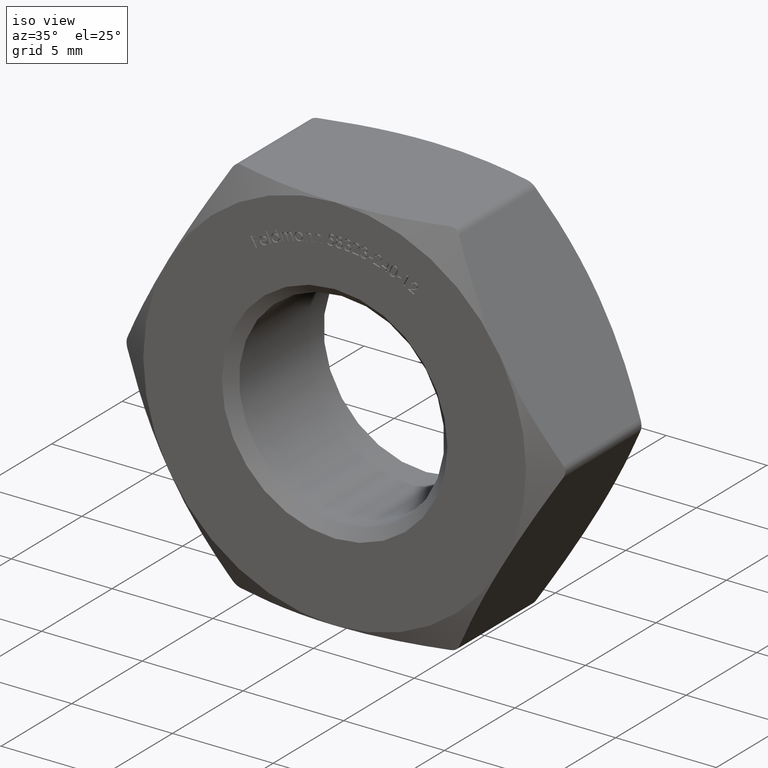
[diagram: clean part render]
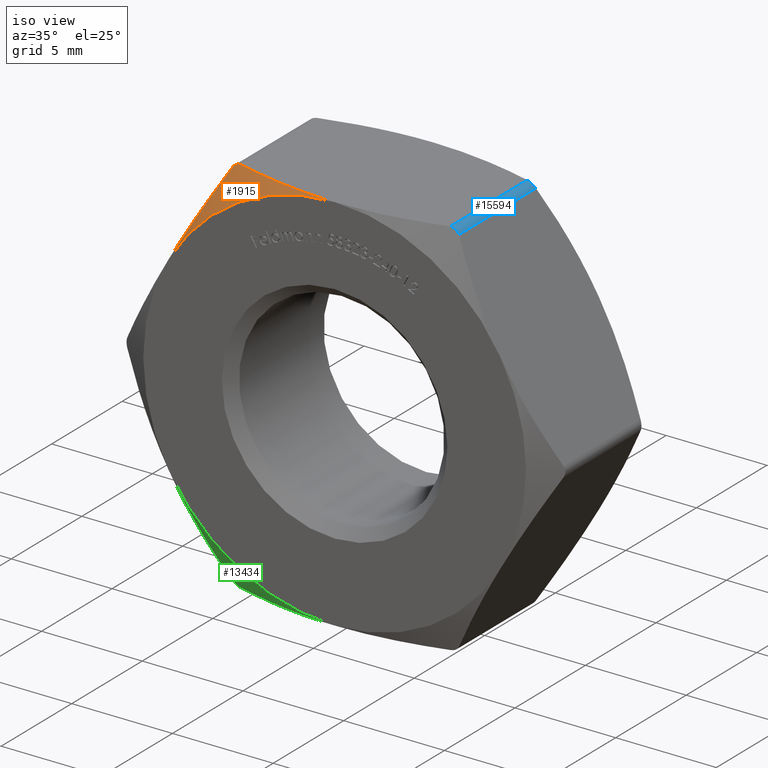
[diagram: same view with three faces highlighted in distinct colors, each labeled with its STEP entity id]
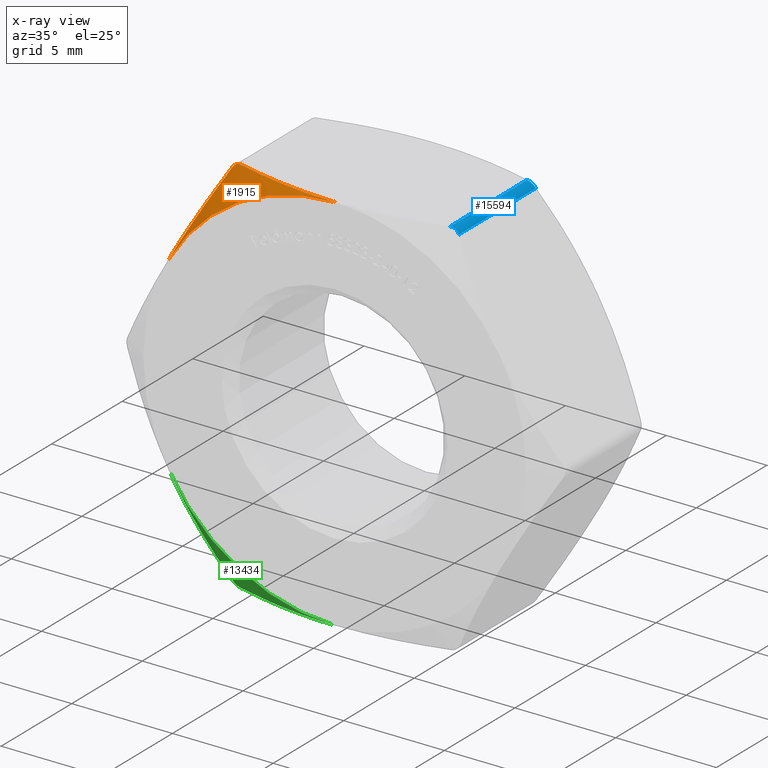
[diagram: x-ray of the same camera — body ghosted, the three highlighted faces saturated]
A machine part, iso view with three faces highlighted in distinct colors.
The next image is the same camera in x-ray (body ghosted, the three faces saturated) — at least one of them is partly hidden behind the body in this view.
Their STEP definitions:

[orange] entity #1915 — the highlighted conical surface has half-angle 60 deg.
#121 = CARTESIAN_POINT ( 'NONE',  ( -6.053412761787224200, -2.968240341392042400, 8.515181537398682100 ) ) ;
#693 = CARTESIAN_POINT ( 'NONE',  ( -5.586216033881830100, -2.709362655883565300, 9.324390007260763700 ) ) ;
#959 = EDGE_CURVE ( 'NONE', #9772, #6608, #6633, .T. ) ;
#1188 = CONICAL_SURFACE ( 'NONE', #2061, 9.500000000000001800, 1.047197551196604100 ) ;
#1213 = CARTESIAN_POINT ( 'NONE',  ( -8.227241335952168600, -3.500000000000000000, 4.750000000000000900 ) ) ;
#1263 = CARTESIAN_POINT ( 'NONE',  ( -5.196152422707281300, -2.733161112797592600, 9.500000000000001800 ) ) ;
#1301 = DIRECTION ( 'NONE',  ( 0.0000000000000000000, 0.0000000000000000000, 1.000000000000000000 ) ) ;
#1393 = CARTESIAN_POINT ( 'NONE',  ( -4.348666152671948600, -2.967960792442867900, 9.500000000000001800 ) ) ;
#1448 = ORIENTED_EDGE ( 'NONE', *, *, #14249, .F. ) ;
#1915 = ADVANCED_FACE ( 'NONE', ( #8037 ), #1188, .T. ) ;
#2061 = AXIS2_PLACEMENT_3D ( 'NONE', #7281, #15125, #2103 ) ;
#2103 = DIRECTION ( 'NONE',  ( 1.000000000000000000, 0.0000000000000000000, 0.0000000000000000000 ) ) ;
#2733 = VERTEX_POINT ( 'NONE', #1213 ) ;
#3143 = CARTESIAN_POINT ( 'NONE',  ( -5.629165124598849000, -2.733161112797774200, 9.250000000000000000 ) ) ;
#3198 = CARTESIAN_POINT ( 'NONE',  ( -5.196152422707281300, -2.733161112797592600, 9.500000000000001800 ) ) ;
#3751 = CARTESIAN_POINT ( 'NONE',  ( -3.482435840627232900, -3.163065989375615700, 9.500000000000001800 ) ) ;
#4057 = CARTESIAN_POINT ( 'NONE',  ( -5.629165124598849000, -2.733161112797774200, 9.250000000000000000 ) ) ;
#4195 = EDGE_LOOP ( 'NONE', ( #7254, #15839, #13983, #1448 ) ) ;
#4452 = CARTESIAN_POINT ( 'NONE',  ( -5.369432392636323200, -2.696196110277392600, 9.477215452927211500 ) ) ;
#4567 = CARTESIAN_POINT ( 'NONE',  ( -5.282019346758962000, -2.709371315874078000, 9.500000000000000000 ) ) ;
#5151 = CARTESIAN_POINT ( 'NONE',  ( -7.347778050468204600, -3.412405536657729100, 6.273275093849667500 ) ) ;
#5197 = AXIS2_PLACEMENT_3D ( 'NONE', #8802, #12658, #1301 ) ;
#5256 = CARTESIAN_POINT ( 'NONE',  ( -6.481161992788940100, -3.161040693212942000, 7.774298136405198200 ) ) ;
#6315 = B_SPLINE_CURVE_WITH_KNOTS ( 'NONE', 3,
 ( #15235, #10209, #11503, #5151, #14156, #5256, #121, #4057 ),
 .UNSPECIFIED., .F., .F.,
 ( 4, 2, 2, 4 ),
 ( 0.005549985383765654100, 0.006857997360578059000, 0.008166009337390464600, 0.01078203329101527400 ),
 .UNSPECIFIED. ) ;
#6417 = EDGE_CURVE ( 'NONE', #2733, #6608, #6315, .T. ) ;
#6608 = VERTEX_POINT ( 'NONE', #16556 ) ;
#6633 = B_SPLINE_CURVE_WITH_KNOTS ( 'NONE', 3,
 ( #3198, #4567, #4452, #12269, #693, #3143 ),
 .UNSPECIFIED., .F., .F.,
 ( 4, 2, 4 ),
 ( 6.327872022629089200E-016, 0.0002637781458277957400, 0.0005275562916549586400 ),
 .UNSPECIFIED. ) ;
#7254 = ORIENTED_EDGE ( 'NONE', *, *, #11819, .F. ) ;
#7281 = CARTESIAN_POINT ( 'NONE',  ( 3.931690912932538000E-017, -3.500000000000000000, 0.0000000000000000000 ) ) ;
#7700 = CIRCLE ( 'NONE', #5197, 9.500000000000001800 ) ;
#7862 = CARTESIAN_POINT ( 'NONE',  ( -5.196152422707281300, -2.733161112797592600, 9.500000000000001800 ) ) ;
#8037 = FACE_OUTER_BOUND ( 'NONE', #4195, .T. ) ;
#8802 = CARTESIAN_POINT ( 'NONE',  ( 3.931690912932538000E-017, -3.500000000000000000, 1.848398285660946700E-016 ) ) ;
#9772 = VERTEX_POINT ( 'NONE', #1263 ) ;
#10209 = CARTESIAN_POINT ( 'NONE',  ( -8.007001594286082400, -3.500000000000008400, 5.131466422411502700 ) ) ;
#11503 = CARTESIAN_POINT ( 'NONE',  ( -7.785726958241923500, -3.482053147081709100, 5.514725334466293200 ) ) ;
#11529 = CARTESIAN_POINT ( 'NONE',  ( -0.8769579191401497600, -3.500000000000000000, 9.500000000000001800 ) ) ;
#11819 = EDGE_CURVE ( 'NONE', #9772, #15396, #13203, .T. ) ;
#12269 = CARTESIAN_POINT ( 'NONE',  ( -5.522094562399192200, -2.696108957237636000, 9.389258600500994600 ) ) ;
#12658 = DIRECTION ( 'NONE',  ( -0.0000000000000000000, -1.000000000000000000, -0.0000000000000000000 ) ) ;
#13203 = B_SPLINE_CURVE_WITH_KNOTS ( 'NONE', 3,
 ( #7862, #1393, #3751, #16726, #11529, #14125 ),
 .UNSPECIFIED., .F., .F.,
 ( 4, 2, 4 ),
 ( 0.01008431317107068100, 0.01270932973017897500, 0.01533434628928726800 ),
 .UNSPECIFIED. ) ;
#13858 = CARTESIAN_POINT ( 'NONE',  ( 3.931690912932538000E-017, -3.500000000000000000, 9.500000000000001800 ) ) ;
#13983 = ORIENTED_EDGE ( 'NONE', *, *, #6417, .F. ) ;
#14125 = CARTESIAN_POINT ( 'NONE',  ( 3.931690912932538000E-017, -3.500000000000000000, 9.500000000000001800 ) ) ;
#14156 = CARTESIAN_POINT ( 'NONE',  ( -7.130196065325849400, -3.360768812073043200, 6.650138146927925900 ) ) ;
#14249 = EDGE_CURVE ( 'NONE', #15396, #2733, #7700, .T. ) ;
#15125 = DIRECTION ( 'NONE',  ( -1.123340260837868000E-017, 1.000000000000000000, -0.0000000000000000000 ) ) ;
#15235 = CARTESIAN_POINT ( 'NONE',  ( -8.227241335952168600, -3.500000000000000000, 4.750000000000000900 ) ) ;
#15396 = VERTEX_POINT ( 'NONE', #13858 ) ;
#15839 = ORIENTED_EDGE ( 'NONE', *, *, #959, .T. ) ;
#16556 = CARTESIAN_POINT ( 'NONE',  ( -5.629165124598849000, -2.733161112797774200, 9.250000000000000000 ) ) ;
#16726 = CARTESIAN_POINT ( 'NONE',  ( -1.748548221912492400, -3.428786257910811500, 9.500000000000000000 ) ) ;

[blue] entity #15594 — the highlighted cylindrical surface (edge-blend (fillet) strip) has radius 0.5 mm, axis along (0, -1, 0).
#66 = LINE ( 'NONE', #2085, #14171 ) ;
#133 = CARTESIAN_POINT ( 'NONE',  ( 5.586231662572711100, -2.709371315873996300, 9.324362937574106200 ) ) ;
#380 = CARTESIAN_POINT ( 'NONE',  ( 5.522094562399021600, 2.696108957237604000, 9.389258600501161600 ) ) ;
#1439 = CYLINDRICAL_SURFACE ( 'NONE', #12619, 0.5000000000000004400 ) ;
#1485 = CARTESIAN_POINT ( 'NONE',  ( 5.522793143055056800, -2.696196110277375300, 9.388672582389874700 ) ) ;
#2085 = CARTESIAN_POINT ( 'NONE',  ( 5.196152422706629400, 3.500000000000000000, 9.500000000000001800 ) ) ;
#2286 = DIRECTION ( 'NONE',  ( 0.0000000000000000000, 0.0000000000000000000, -1.000000000000000000 ) ) ;
#2467 = B_SPLINE_CURVE_WITH_KNOTS ( 'NONE', 3,
 ( #9039, #133, #1485, #3960, #10501, #2752 ),
 .UNSPECIFIED., .F., .F.,
 ( 4, 2, 4 ),
 ( 9.650992615314286700E-016, 0.0002637781458279600000, 0.0005275562916549548400 ),
 .UNSPECIFIED. ) ;
#2752 = CARTESIAN_POINT ( 'NONE',  ( 5.196152422706628500, -2.733161112797773300, 9.500000000000001800 ) ) ;
#3178 = B_SPLINE_CURVE_WITH_KNOTS ( 'NONE', 3,
 ( #10807, #5675, #14641, #380, #14693, #15935 ),
 .UNSPECIFIED., .F., .F.,
 ( 4, 2, 4 ),
 ( 8.673617379884035500E-019, 0.0002637781458274811100, 0.0005275562916549613500 ),
 .UNSPECIFIED. ) ;
#3343 = ORIENTED_EDGE ( 'NONE', *, *, #11561, .F. ) ;
#3524 = CARTESIAN_POINT ( 'NONE',  ( 5.196152422706629400, 3.500000000000000000, 9.000000000000001800 ) ) ;
#3624 = VERTEX_POINT ( 'NONE', #16679 ) ;
#3960 = CARTESIAN_POINT ( 'NONE',  ( 5.370289189535662400, -2.696108957237654200, 9.476903473388148300 ) ) ;
#4768 = VERTEX_POINT ( 'NONE', #5012 ) ;
#5012 = CARTESIAN_POINT ( 'NONE',  ( 5.196152422706628500, -2.733161112797773300, 9.500000000000001800 ) ) ;
#5158 = CARTESIAN_POINT ( 'NONE',  ( 5.629165124598849000, 3.500000000000000000, 9.250000000000001800 ) ) ;
#5594 = EDGE_CURVE ( 'NONE', #4768, #16741, #66, .T. ) ;
#5675 = CARTESIAN_POINT ( 'NONE',  ( 5.282019346759056200, 2.709371315874232100, 9.500000000000000000 ) ) ;
#6583 = ORIENTED_EDGE ( 'NONE', *, *, #11458, .F. ) ;
#7792 = DIRECTION ( 'NONE',  ( 0.0000000000000000000, -1.000000000000000000, 0.0000000000000000000 ) ) ;
#8778 = EDGE_LOOP ( 'NONE', ( #9463, #13874, #3343, #6583 ) ) ;
#9039 = CARTESIAN_POINT ( 'NONE',  ( 5.629165124598350700, -2.733161112797497100, 9.250000000000863300 ) ) ;
#9288 = CARTESIAN_POINT ( 'NONE',  ( 5.196152422706628500, 2.733161112797773300, 9.500000000000001800 ) ) ;
#9463 = ORIENTED_EDGE ( 'NONE', *, *, #11757, .F. ) ;
#10501 = CARTESIAN_POINT ( 'NONE',  ( 5.282050604140605900, -2.709362655883581300, 9.500000000000003600 ) ) ;
#10807 = CARTESIAN_POINT ( 'NONE',  ( 5.196152422706628500, 2.733161112797773300, 9.500000000000001800 ) ) ;
#11245 = DIRECTION ( 'NONE',  ( 0.0000000000000000000, -1.000000000000000000, 0.0000000000000000000 ) ) ;
#11458 = EDGE_CURVE ( 'NONE', #3624, #14062, #16010, .T. ) ;
#11561 = EDGE_CURVE ( 'NONE', #14062, #4768, #2467, .T. ) ;
#11757 = EDGE_CURVE ( 'NONE', #16741, #3624, #3178, .T. ) ;
#11822 = CARTESIAN_POINT ( 'NONE',  ( 5.629165124598350700, -2.733161112797497100, 9.250000000000863300 ) ) ;
#12619 = AXIS2_PLACEMENT_3D ( 'NONE', #3524, #11245, #2286 ) ;
#13874 = ORIENTED_EDGE ( 'NONE', *, *, #5594, .F. ) ;
#14062 = VERTEX_POINT ( 'NONE', #11822 ) ;
#14171 = VECTOR ( 'NONE', #14939, 1000.000000000000000 ) ;
#14641 = CARTESIAN_POINT ( 'NONE',  ( 5.369432392635906700, 2.696196110277425500, 9.477215452927385500 ) ) ;
#14693 = CARTESIAN_POINT ( 'NONE',  ( 5.586216033881776800, 2.709362655883534600, 9.324390007260857900 ) ) ;
#14939 = DIRECTION ( 'NONE',  ( -0.0000000000000000000, 1.000000000000000000, -0.0000000000000000000 ) ) ;
#15148 = FACE_OUTER_BOUND ( 'NONE', #8778, .T. ) ;
#15221 = VECTOR ( 'NONE', #7792, 1000.000000000000000 ) ;
#15594 = ADVANCED_FACE ( 'NONE', ( #15148 ), #1439, .T. ) ;
#15935 = CARTESIAN_POINT ( 'NONE',  ( 5.629165124598849000, 2.733161112797772400, 9.250000000000001800 ) ) ;
#16010 = LINE ( 'NONE', #5158, #15221 ) ;
#16679 = CARTESIAN_POINT ( 'NONE',  ( 5.629165124598849000, 2.733161112797772400, 9.250000000000001800 ) ) ;
#16741 = VERTEX_POINT ( 'NONE', #9288 ) ;

[green] entity #13434 — the highlighted conical surface has half-angle 60 deg.
#111 = CARTESIAN_POINT ( 'NONE',  ( -8.227241335952168600, -3.500000000000000000, -4.750000000000001800 ) ) ;
#702 = EDGE_CURVE ( 'NONE', #10328, #5514, #4880, .T. ) ;
#1172 = CARTESIAN_POINT ( 'NONE',  ( -5.522793143055217500, -2.696196110277409900, -9.388672582389709500 ) ) ;
#2681 = CARTESIAN_POINT ( 'NONE',  ( -7.348052271291359200, -3.427662757294317700, -6.272800129451474600 ) ) ;
#2715 = CARTESIAN_POINT ( 'NONE',  ( -1.462997689607834900E-015, -3.500000000000000000, -9.500000000000001800 ) ) ;
#2931 = ORIENTED_EDGE ( 'NONE', *, *, #14754, .F. ) ;
#3020 = EDGE_CURVE ( 'NONE', #10773, #5514, #3417, .T. ) ;
#3417 = B_SPLINE_CURVE_WITH_KNOTS ( 'NONE', 3,
 ( #16554, #15325, #1172, #12878, #5058, #8950 ),
 .UNSPECIFIED., .F., .F.,
 ( 4, 2, 4 ),
 ( 9.644829498149094700E-016, 0.0002637781458276255200, 0.0005275562916542865400 ),
 .UNSPECIFIED. ) ;
#3570 = DIRECTION ( 'NONE',  ( -0.0000000000000000000, -1.000000000000000000, -0.0000000000000000000 ) ) ;
#4196 = DIRECTION ( 'NONE',  ( -1.123340260837868000E-017, 1.000000000000000000, -0.0000000000000000000 ) ) ;
#4877 = DIRECTION ( 'NONE',  ( 1.776356839400250500E-015, 0.0000000000000000000, 1.000000000000000000 ) ) ;
#4880 = B_SPLINE_CURVE_WITH_KNOTS ( 'NONE', 3,
 ( #2715, #11728, #13028, #12053, #8460, #12326 ),
 .UNSPECIFIED., .F., .F.,
 ( 4, 2, 4 ),
 ( 0.009558317508500467600, 0.01217662311715558500, 0.01479492872581070000 ),
 .UNSPECIFIED. ) ;
#5058 = CARTESIAN_POINT ( 'NONE',  ( -5.282050604140535700, -2.709362655883606600, -9.499999999999989300 ) ) ;
#5514 = VERTEX_POINT ( 'NONE', #13128 ) ;
#6366 = CARTESIAN_POINT ( 'NONE',  ( -1.462997689607834900E-015, -3.500000000000000000, -9.500000000000001800 ) ) ;
#7871 = CARTESIAN_POINT ( 'NONE',  ( -6.054432448312233800, -2.968805358379080300, -8.513415388529578500 ) ) ;
#8460 = CARTESIAN_POINT ( 'NONE',  ( -4.348666152671951200, -2.967960792442870600, -9.499999999999996400 ) ) ;
#8526 = CONICAL_SURFACE ( 'NONE', #11759, 9.500000000000001800, 1.047197551196604100 ) ;
#8950 = CARTESIAN_POINT ( 'NONE',  ( -5.196152422707283900, -2.733161112797594300, -9.499999999999996400 ) ) ;
#9076 = EDGE_LOOP ( 'NONE', ( #2931, #11715, #14357, #11115 ) ) ;
#9340 = CARTESIAN_POINT ( 'NONE',  ( 3.931690912932538000E-017, -3.500000000000000000, 0.0000000000000000000 ) ) ;
#10328 = VERTEX_POINT ( 'NONE', #6366 ) ;
#10367 = CARTESIAN_POINT ( 'NONE',  ( -6.482771478358119000, -3.161682687220364100, -7.771510425625339600 ) ) ;
#10472 = CARTESIAN_POINT ( 'NONE',  ( -7.785049015618852800, -3.500000000000007500, -5.515899565534069500 ) ) ;
#10626 = DIRECTION ( 'NONE',  ( 1.000000000000000000, 0.0000000000000000000, 0.0000000000000000000 ) ) ;
#10773 = VERTEX_POINT ( 'NONE', #11240 ) ;
#10797 = EDGE_CURVE ( 'NONE', #12208, #10328, #13585, .T. ) ;
#11115 = ORIENTED_EDGE ( 'NONE', *, *, #10797, .F. ) ;
#11240 = CARTESIAN_POINT ( 'NONE',  ( -5.629165124598355200, -2.733161112797499300, -9.250000000000858000 ) ) ;
#11643 = CARTESIAN_POINT ( 'NONE',  ( -5.629165124598355200, -2.733161112797499300, -9.250000000000858000 ) ) ;
#11715 = ORIENTED_EDGE ( 'NONE', *, *, #3020, .T. ) ;
#11728 = CARTESIAN_POINT ( 'NONE',  ( -0.8769579191401502000, -3.500000000000002200, -9.499999999999998200 ) ) ;
#11759 = AXIS2_PLACEMENT_3D ( 'NONE', #9340, #4196, #10626 ) ;
#11798 = CARTESIAN_POINT ( 'NONE',  ( -8.227241335952168600, -3.500000000000000000, -4.750000000000001800 ) ) ;
#12053 = CARTESIAN_POINT ( 'NONE',  ( -3.482435840627234700, -3.163065989375616100, -9.499999999999994700 ) ) ;
#12208 = VERTEX_POINT ( 'NONE', #111 ) ;
#12326 = CARTESIAN_POINT ( 'NONE',  ( -5.196152422707283900, -2.733161112797594300, -9.499999999999996400 ) ) ;
#12525 = CARTESIAN_POINT ( 'NONE',  ( 3.931690912932538000E-017, -3.500000000000000000, 1.848398285660946700E-016 ) ) ;
#12878 = CARTESIAN_POINT ( 'NONE',  ( -5.370289189536086000, -2.696108957237623100, -9.476903473387968900 ) ) ;
#13028 = CARTESIAN_POINT ( 'NONE',  ( -1.748548221912495500, -3.428786257910813700, -9.499999999999996400 ) ) ;
#13128 = CARTESIAN_POINT ( 'NONE',  ( -5.196152422707283900, -2.733161112797594300, -9.499999999999996400 ) ) ;
#13338 = FACE_OUTER_BOUND ( 'NONE', #9076, .T. ) ;
#13434 = ADVANCED_FACE ( 'NONE', ( #13338 ), #8526, .T. ) ;
#13585 = CIRCLE ( 'NONE', #15030, 9.500000000000001800 ) ;
#14357 = ORIENTED_EDGE ( 'NONE', *, *, #702, .F. ) ;
#14754 = EDGE_CURVE ( 'NONE', #10773, #12208, #16310, .T. ) ;
#15030 = AXIS2_PLACEMENT_3D ( 'NONE', #12525, #3570, #4877 ) ;
#15325 = CARTESIAN_POINT ( 'NONE',  ( -5.586231662572767000, -2.709371315874028700, -9.324362937574006700 ) ) ;
#16310 = B_SPLINE_CURVE_WITH_KNOTS ( 'NONE', 3,
 ( #11643, #7871, #10367, #2681, #10472, #11798 ),
 .UNSPECIFIED., .F., .F.,
 ( 4, 2, 4 ),
 ( 0.0002975922718325331100, 0.002923788827799091500, 0.005549985383765649800 ),
 .UNSPECIFIED. ) ;
#16554 = CARTESIAN_POINT ( 'NONE',  ( -5.629165124598355200, -2.733161112797499300, -9.250000000000858000 ) ) ;